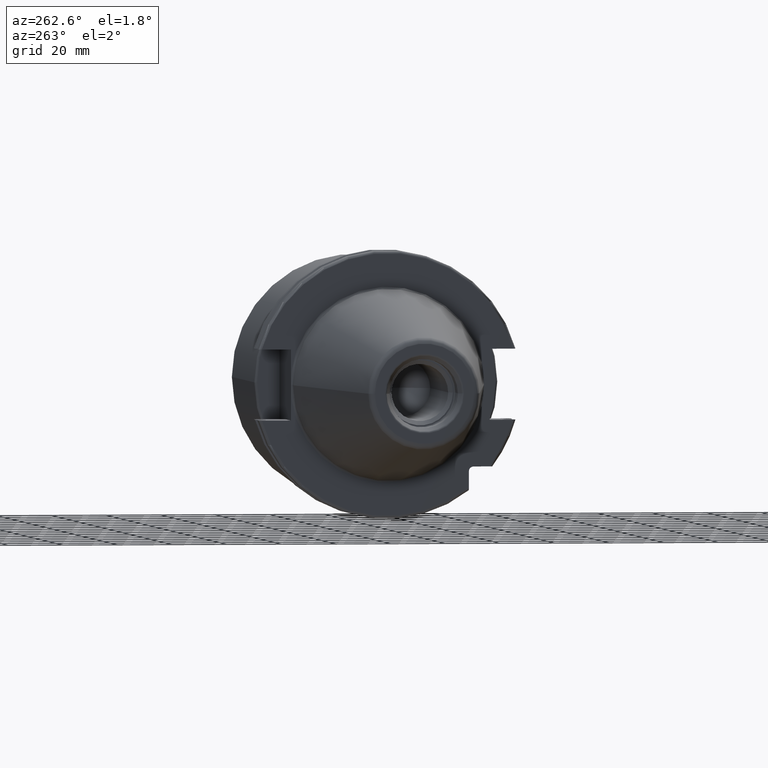
[diagram: clean part render]
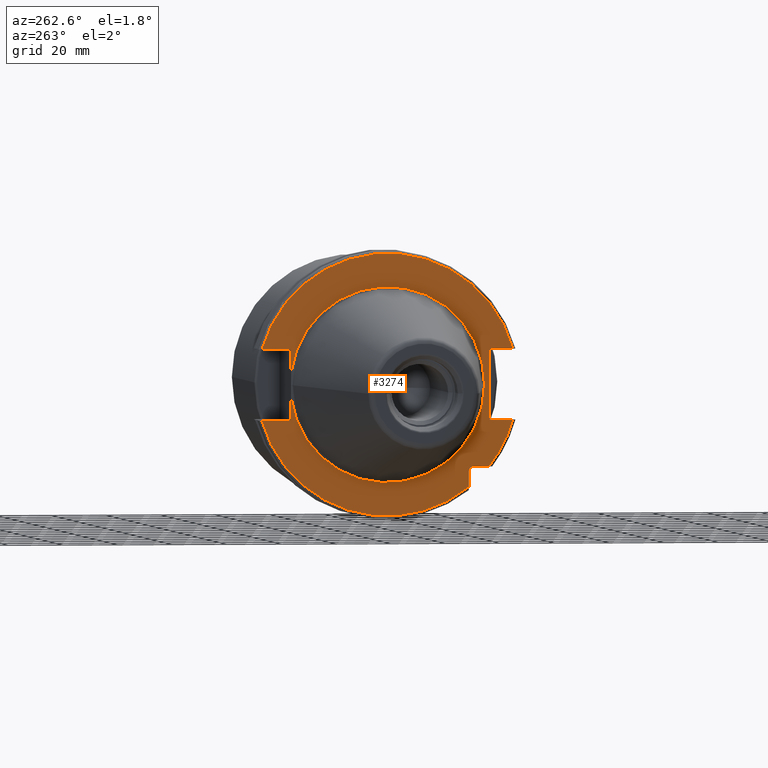
[diagram: same view with one face highlighted and labeled with its STEP entity id]
A machine part, auxiliary view. The second image highlights one B-rep face of the part: STEP entity #3274.
In plain terms, the highlighted planar face has unit normal (1, 0, 0).
Its self-contained STEP definition (entity closure, byte-faithful):
#117=CARTESIAN_POINT('',(3.2E0,0.E0,0.E0));
#118=DIRECTION('',(-1.E0,0.E0,0.E0));
#119=DIRECTION('',(0.E0,9.922698524245E-1,-1.240989120402E-1));
#120=AXIS2_PLACEMENT_3D('',#117,#118,#119);
#882=DIRECTION('',(0.E0,-1.E0,0.E0));
#883=VECTOR('',#882,5.653810627237E0);
#884=CARTESIAN_POINT('',(3.2E0,-3.16E1,-2.985E1));
#885=LINE('',#884,#883);
#886=DIRECTION('',(0.E0,0.E0,1.E0));
#887=VECTOR('',#886,5.653810627237E0);
#888=CARTESIAN_POINT('',(3.2E0,-2.985E1,-3.725381062724E1));
#889=LINE('',#888,#887);
#890=CARTESIAN_POINT('',(3.2E0,0.E0,0.E0));
#891=DIRECTION('',(-1.E0,0.E0,0.E0));
#892=DIRECTION('',(0.E0,9.627964123359E-1,-2.702278083268E-1));
#893=AXIS2_PLACEMENT_3D('',#890,#891,#892);
#895=DIRECTION('',(0.E0,-1.E0,0.E0));
#896=VECTOR('',#895,1.066149373389E1);
#897=CARTESIAN_POINT('',(3.2E0,4.596149373389E1,-1.29E1));
#898=LINE('',#897,#896);
#899=DIRECTION('',(0.E0,0.E0,-1.E0));
#900=VECTOR('',#899,8.485181204172E0);
#901=CARTESIAN_POINT('',(3.2E0,3.53E1,-4.414818795828E0));
#902=LINE('',#901,#900);
#903=DIRECTION('',(0.E0,0.E0,-1.E0));
#904=VECTOR('',#903,8.485181204172E0);
#905=CARTESIAN_POINT('',(3.2E0,3.53E1,1.29E1));
#906=LINE('',#905,#904);
#907=DIRECTION('',(0.E0,-1.E0,0.E0));
#908=VECTOR('',#907,1.066149373389E1);
#909=CARTESIAN_POINT('',(3.2E0,4.596149373389E1,1.29E1));
#910=LINE('',#909,#908);
#911=CARTESIAN_POINT('',(3.2E0,0.E0,0.E0));
#912=DIRECTION('',(1.E0,0.E0,0.E0));
#913=DIRECTION('',(0.E0,9.627964123359E-1,2.702278083268E-1));
#914=AXIS2_PLACEMENT_3D('',#911,#912,#913);
#916=DIRECTION('',(0.E0,1.E0,0.E0));
#917=VECTOR('',#916,8.461493733886E0);
#918=CARTESIAN_POINT('',(3.2E0,-4.596149373389E1,1.29E1));
#919=LINE('',#918,#917);
#920=DIRECTION('',(0.E0,0.E0,1.E0));
#921=VECTOR('',#920,2.58E1);
#922=CARTESIAN_POINT('',(3.2E0,-3.75E1,-1.29E1));
#923=LINE('',#922,#921);
#924=DIRECTION('',(0.E0,1.E0,0.E0));
#925=VECTOR('',#924,8.461493733886E0);
#926=CARTESIAN_POINT('',(3.2E0,-4.596149373389E1,-1.29E1));
#927=LINE('',#926,#925);
#928=CARTESIAN_POINT('',(3.2E0,0.E0,0.E0));
#929=DIRECTION('',(-1.E0,0.E0,0.E0));
#930=DIRECTION('',(0.E0,-7.803888060170E-1,-6.252945797329E-1));
#931=AXIS2_PLACEMENT_3D('',#928,#929,#930);
#942=CARTESIAN_POINT('',(3.2E0,-3.16E1,-3.16E1));
#943=DIRECTION('',(1.E0,0.E0,0.E0));
#944=DIRECTION('',(0.E0,1.E0,0.E0));
#945=AXIS2_PLACEMENT_3D('',#942,#943,#944);
#1055=CARTESIAN_POINT('',(3.2E0,-3.725381062724E1,-2.985E1));
#1544=CARTESIAN_POINT('',(3.2E0,0.E0,0.E0));
#1545=DIRECTION('',(1.E0,0.E0,0.E0));
#1546=DIRECTION('',(0.E0,9.922698524245E-1,1.240989120402E-1));
#1547=AXIS2_PLACEMENT_3D('',#1544,#1545,#1546);
#1767=CARTESIAN_POINT('',(3.2E0,-3.5575E1,0.E0));
#1769=VERTEX_POINT('',#1767);
#1885=CARTESIAN_POINT('',(3.2E0,4.596149373389E1,1.29E1));
#1886=CARTESIAN_POINT('',(3.2E0,3.53E1,1.29E1));
#1887=VERTEX_POINT('',#1885);
#1888=VERTEX_POINT('',#1886);
#1889=CARTESIAN_POINT('',(3.2E0,3.53E1,4.414818795828E0));
#1890=VERTEX_POINT('',#1889);
#1891=CARTESIAN_POINT('',(3.2E0,3.53E1,-4.414818795828E0));
#1892=CARTESIAN_POINT('',(3.2E0,3.53E1,-1.29E1));
#1893=VERTEX_POINT('',#1891);
#1894=VERTEX_POINT('',#1892);
#1895=CARTESIAN_POINT('',(3.2E0,4.596149373389E1,-1.29E1));
#1896=VERTEX_POINT('',#1895);
#1897=CARTESIAN_POINT('',(3.2E0,-4.596149373389E1,-1.29E1));
#1898=CARTESIAN_POINT('',(3.2E0,-3.75E1,-1.29E1));
#1899=VERTEX_POINT('',#1897);
#1900=VERTEX_POINT('',#1898);
#1901=CARTESIAN_POINT('',(3.2E0,-3.75E1,1.29E1));
#1902=VERTEX_POINT('',#1901);
#1903=CARTESIAN_POINT('',(3.2E0,-4.596149373389E1,1.29E1));
#1904=VERTEX_POINT('',#1903);
#1940=CARTESIAN_POINT('',(3.2E0,-2.985E1,-3.725381062724E1));
#1941=VERTEX_POINT('',#1940);
#1942=CARTESIAN_POINT('',(3.2E0,-2.985E1,-3.16E1));
#1943=CARTESIAN_POINT('',(3.2E0,-3.16E1,-2.985E1));
#1944=VERTEX_POINT('',#1942);
#1945=VERTEX_POINT('',#1943);
#1964=VERTEX_POINT('',#1055);
#3243=CARTESIAN_POINT('',(3.2E0,0.E0,0.E0));
#3244=DIRECTION('',(1.E0,0.E0,0.E0));
#3245=DIRECTION('',(0.E0,-1.E0,0.E0));
#3246=AXIS2_PLACEMENT_3D('',#3243,#3244,#3245);
#3247=PLANE('',#3246);
#3249=ORIENTED_EDGE('',*,*,#3248,.F.);
#3251=ORIENTED_EDGE('',*,*,#3250,.F.);
#3253=ORIENTED_EDGE('',*,*,#3252,.F.);
#3255=ORIENTED_EDGE('',*,*,#3254,.F.);
#3256=ORIENTED_EDGE('',*,*,#3217,.T.);
#3257=ORIENTED_EDGE('',*,*,#2306,.F.);
#3258=ORIENTED_EDGE('',*,*,#2261,.T.);
#3260=ORIENTED_EDGE('',*,*,#3259,.F.);
#3261=ORIENTED_EDGE('',*,*,#2301,.F.);
#3263=ORIENTED_EDGE('',*,*,#3262,.F.);
#3265=ORIENTED_EDGE('',*,*,#3264,.T.);
#3267=ORIENTED_EDGE('',*,*,#3266,.T.);
#3268=ORIENTED_EDGE('',*,*,#2360,.F.);
#3269=ORIENTED_EDGE('',*,*,#3176,.F.);
#3271=ORIENTED_EDGE('',*,*,#3270,.F.);
#3272=EDGE_LOOP('',(#3249,#3251,#3253,#3255,#3256,#3257,#3258,#3260,#3261,#3263,
#3265,#3267,#3268,#3269,#3271));
#3273=FACE_OUTER_BOUND('',#3272,.F.);
#3274=ADVANCED_FACE('',(#3273),#3247,.F.);
#121=CIRCLE('',#120,3.5575E1);
#894=CIRCLE('',#893,4.77375E1);
#915=CIRCLE('',#914,4.77375E1);
#932=CIRCLE('',#931,4.77375E1);
#946=CIRCLE('',#945,1.75E0);
#1548=CIRCLE('',#1547,3.5575E1);
#2261=EDGE_CURVE('',#1893,#1769,#121,.T.);
#2301=EDGE_CURVE('',#1888,#1890,#906,.T.);
#2306=EDGE_CURVE('',#1893,#1894,#902,.T.);
#2360=EDGE_CURVE('',#1900,#1902,#923,.T.);
#3176=EDGE_CURVE('',#1899,#1900,#927,.T.);
#3217=EDGE_CURVE('',#1896,#1894,#898,.T.);
#3248=EDGE_CURVE('',#1945,#1964,#885,.T.);
#3250=EDGE_CURVE('',#1944,#1945,#946,.T.);
#3252=EDGE_CURVE('',#1941,#1944,#889,.T.);
#3254=EDGE_CURVE('',#1896,#1941,#894,.T.);
#3259=EDGE_CURVE('',#1890,#1769,#1548,.T.);
#3262=EDGE_CURVE('',#1887,#1888,#910,.T.);
#3264=EDGE_CURVE('',#1887,#1904,#915,.T.);
#3266=EDGE_CURVE('',#1904,#1902,#919,.T.);
#3270=EDGE_CURVE('',#1964,#1899,#932,.T.);